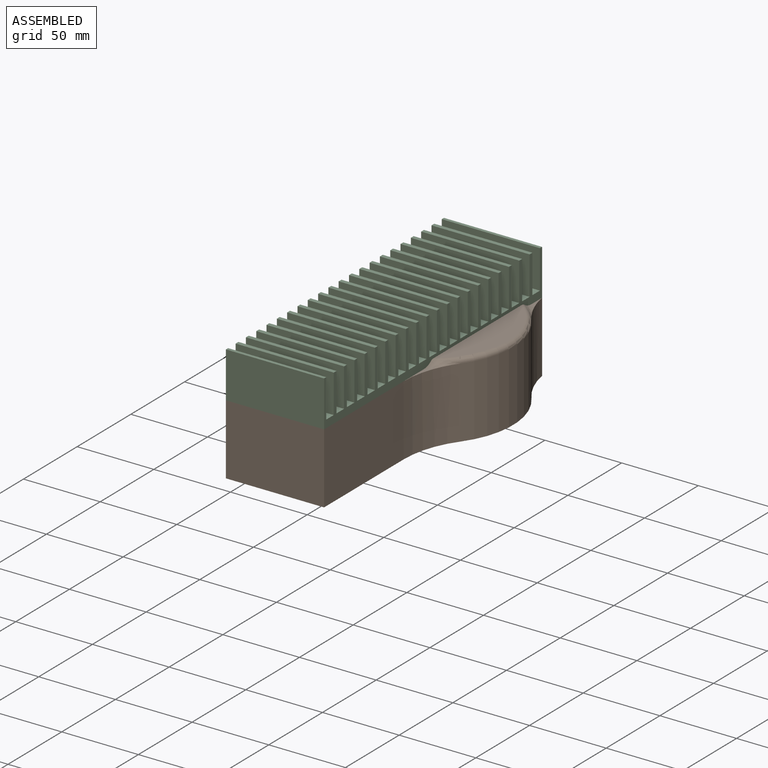
[diagram: assembled view]
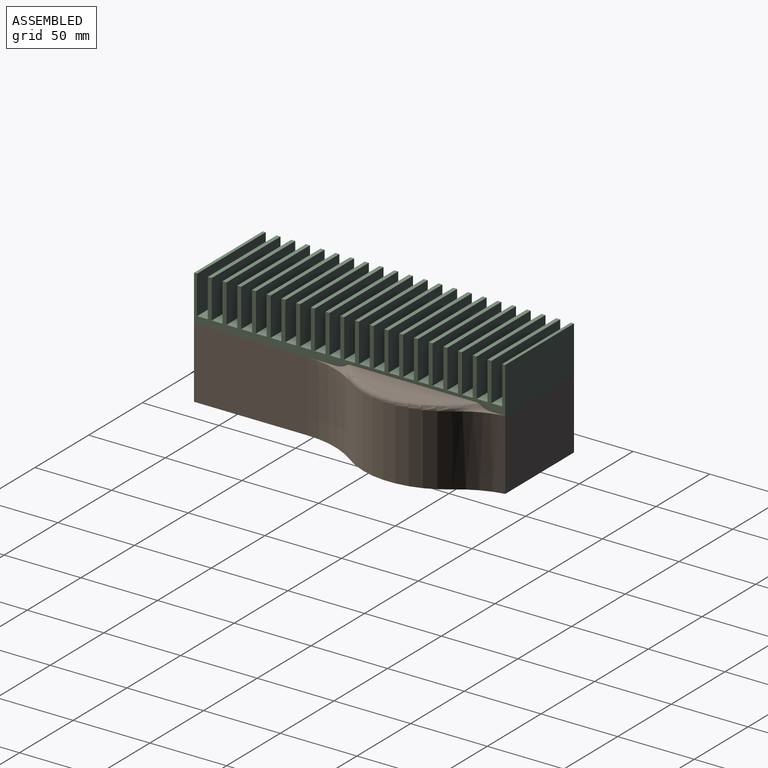
[diagram: assembled view, second angle]
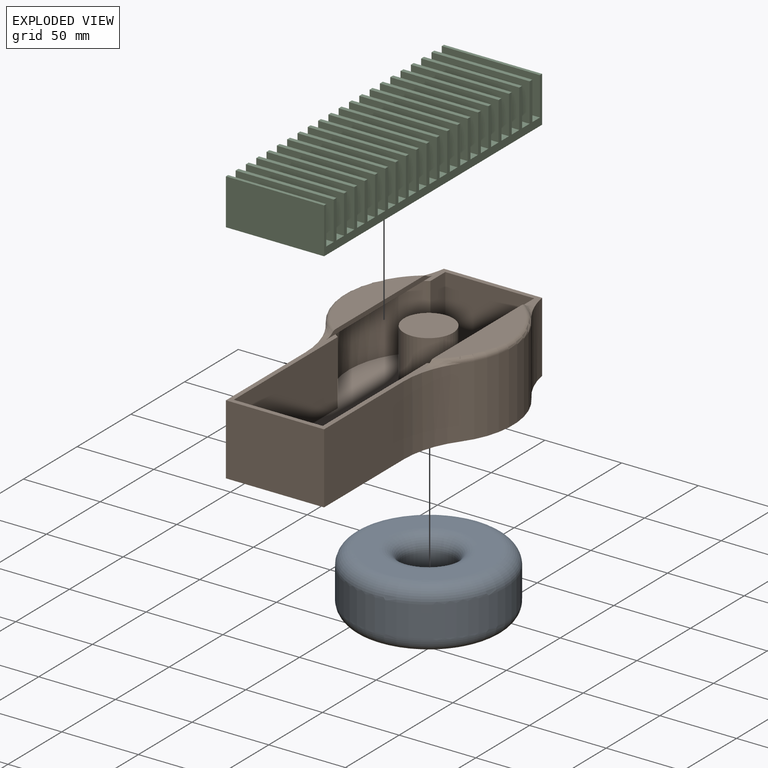
[diagram: exploded view]
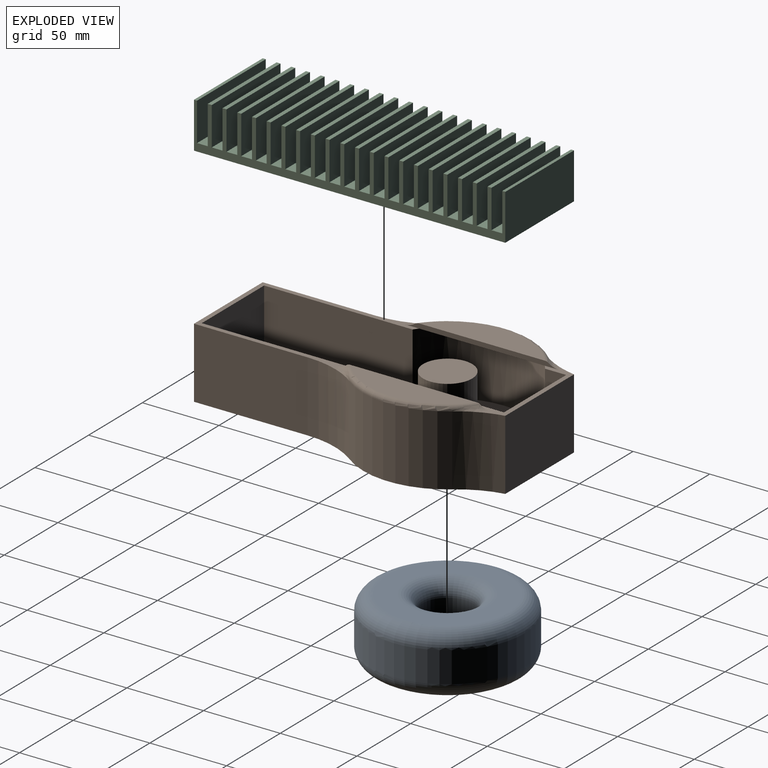
[diagram: exploded view, second angle]
ASSEMBLY  parts=3 mates=2
PART A: 8 faces, bbox 108.2x108.2x40 mm
  f0: cylinder r=16.5mm len=33mm, axis (0,0,-1), area 2073.5mm2, adj f4,f6
  f1: cylinder r=50mm len=100mm, axis (0,0,-1), area 6283.2mm2, adj f5,f7
  f2: plane 80x80mm, normal (0,0,1), area 2820.4mm2, adj f6,f7
  f3: plane 80x80mm, normal (0,0,-1), area 2820.4mm2, adj f4,f5
  f4: torus R=26.5mm, axis (0,0,1), area 1987.1mm2, adj f0,f3
  f5: torus R=40mm, axis (0,0,1), area 4576.2mm2, adj f1,f3
  f6: torus R=26.5mm, axis (0,0,1), area 1987.1mm2, adj f0,f2
  f7: torus R=40mm, axis (0,0,1), area 4576.2mm2, adj f1,f2
PART B: 40 faces, bbox 119.2x203.1x49.1 mm
  f0: plane 70.84x19.01mm, normal (0,0,1), area 309.1mm2, adj f7,f9,f10,f11,f12,f16,f20,f23
  f1: plane 102.01x72.03mm, normal (0,0,1), area 824.8mm2, adj f3,f4,f5,f12,f13,f14,f15,f16
  f2: cylinder r=55mm len=66.54mm, axis (0,0,-1), area 3287.5mm2, adj f8,f27,f29,f31
  f3: plane 74x46mm, normal (-1,0,0), area 3404mm2, adj f1,f4,f8,f29
  f4: plane 64x46mm, normal (0,-1,0), area 2944mm2, adj f1,f3,f5,f8
  f5: plane 74x46mm, normal (1,0,0), area 3404mm2, adj f1,f4,f8,f28
  f6: cylinder r=55mm len=66.54mm, axis (0,0,-1), area 3287.5mm2, adj f8,f26,f28,f30
  f7: plane 64x46mm, normal (0,1,0), area 2944mm2, adj f0,f8,f26,f27
  f8: plane 203x110mm, normal (0,0,-1), area 16091.8mm2, adj f2,f3,f4,f5,f6,f7,f26,f27
  f9: plane 42x13.84mm, normal (-1,0,0), area 581.2mm2, adj f0,f10,f16,f17
  f10: plane 58x42mm, normal (0,-1,0), area 2436mm2, adj f0,f9,f11,f17
  f11: plane 42x13.84mm, normal (1,0,0), area 581.2mm2, adj f0,f10,f12,f17
  f12: cylinder r=52mm len=86.33mm, axis (0,0,1), area 4277.1mm2, adj f0,f1,f11,f13,f17,f22
  f13: plane 96.84x42mm, normal (1,0,0), area 4067.2mm2, adj f1,f12,f14,f17
  f14: plane 58x42mm, normal (0,1,0), area 2436mm2, adj f1,f13,f15,f17
  f15: plane 96.84x42mm, normal (-1,0,0), area 4067.2mm2, adj f1,f14,f16,f17
  f16: cylinder r=52mm len=86.33mm, axis (0,0,1), area 4277.1mm2, adj f0,f1,f9,f15,f17,f25
  f17: plane 197x104mm, normal (0,0,1), area 13413.8mm2, adj f9,f10,f11,f12,f13,f14,f15,f16
  f18: cylinder r=16mm len=40mm, axis (0,0,-1), area 4021.2mm2, adj f17,f19
  f19: plane 32x32mm, normal (0,0,1), area 804.2mm2, adj f18
  f20: plane 100.57x3.13mm, normal (1,0,0), area 269.3mm2, adj f0,f1,f21,f22,f31,f33,f34
  f21: plane 81.98x20mm, normal (0,0,1), area 1143.4mm2, adj f20,f31
  f22: plane 81.98x20mm, normal (0,0,-1), area 1143.4mm2, adj f12,f20
  f23: plane 100.57x3.13mm, normal (-1,0,0), area 269.3mm2, adj f0,f1,f24,f25,f30,f36,f39
  f24: plane 81.98x20mm, normal (0,0,1), area 1143.4mm2, adj f23,f30
  f25: plane 81.98x20mm, normal (0,0,-1), area 1143.4mm2, adj f16,f23
  f26: cylinder r=60mm len=46mm, axis (0,0,1), area 1341.8mm2, adj f0,f6,f7,f8,f37
  f27: cylinder r=60mm len=46mm, axis (0,0,1), area 1341.8mm2, adj f0,f2,f7,f8,f32
  f28: cylinder r=60mm len=46mm, axis (0,0,-1), area 1776.1mm2, adj f1,f5,f6,f8,f38
  f29: cylinder r=60mm len=46mm, axis (0,0,-1), area 1776.1mm2, adj f1,f2,f3,f8,f35
  f30: torus R=52mm, axis (0,0,1), area 419.3mm2, adj f6,f23,f24,f36,f37,f38,f39
  f31: torus R=52mm, axis (0,0,1), area 419.3mm2, adj f2,f20,f21,f32,f33,f34,f35
  f32: bspline ~17.42x14.3mm, area 40.6mm2, adj f27,f31,f33
  f33: torus R=59.55mm, axis (0,0,1), area 12.8mm2, adj f0,f20,f31,f32
  f34: torus R=59.55mm, axis (0,0,1), area 17mm2, adj f1,f20,f31,f35
  f35: bspline ~16.85x13.53mm, area 40.6mm2, adj f29,f31,f34
  f36: torus R=59.55mm, axis (0,0,1), area 12.8mm2, adj f0,f23,f30,f37
  f37: bspline ~17.42x14.3mm, area 40.6mm2, adj f26,f30,f36
  f38: bspline ~14.97x11.8mm, area 40.6mm2, adj f28,f30,f39
  f39: torus R=59.55mm, axis (0,0,1), area 17mm2, adj f1,f23,f30,f38
PART C: 90 faces, bbox 64x203x30 mm
  f0: plane 203x30mm, normal (1,0,0), area 2415mm2, adj f2,f3,f4,f5,f6,f7,f8,f9
  f1: plane 203x30mm, normal (-1,0,0), area 2415mm2, adj f2,f3,f4,f5,f6,f7,f8,f9
  f2: plane 64x2.6mm, normal (0,0,1), area 166.4mm2, adj f0,f1,f86,f88
  f3: plane 64x2.6mm, normal (0,0,1), area 166.4mm2, adj f0,f1,f83,f85
  f4: plane 64x2.6mm, normal (0,0,1), area 166.4mm2, adj f0,f1,f80,f82
  f5: plane 64x2.6mm, normal (0,0,1), area 166.4mm2, adj f0,f1,f77,f79
  f6: plane 64x2.6mm, normal (0,0,1), area 166.4mm2, adj f0,f1,f74,f76
  f7: plane 64x2.6mm, normal (0,0,1), area 166.4mm2, adj f0,f1,f71,f73
  f8: plane 64x2.6mm, normal (0,0,1), area 166.4mm2, adj f0,f1,f68,f70
  f9: plane 64x2.6mm, normal (0,0,1), area 166.4mm2, adj f0,f1,f65,f67
  f10: plane 64x2.6mm, normal (0,0,1), area 166.4mm2, adj f0,f1,f62,f64
  f11: plane 64x2.6mm, normal (0,0,1), area 166.4mm2, adj f0,f1,f29,f61
  f12: plane 64x2mm, normal (0,0,1), area 128mm2, adj f0,f1,f24,f58
  f13: plane 64x2.6mm, normal (0,0,1), area 166.4mm2, adj f0,f1,f55,f59
  f14: plane 64x2.6mm, normal (0,0,1), area 166.4mm2, adj f0,f1,f52,f56
  f15: plane 64x2.6mm, normal (0,0,1), area 166.4mm2, adj f0,f1,f49,f53
  f16: plane 64x2.6mm, normal (0,0,1), area 166.4mm2, adj f0,f1,f46,f50
  f17: plane 64x2.6mm, normal (0,0,1), area 166.4mm2, adj f0,f1,f43,f47
  f18: plane 64x2.6mm, normal (0,0,1), area 166.4mm2, adj f0,f1,f40,f44
  f19: plane 64x2.6mm, normal (0,0,1), area 166.4mm2, adj f0,f1,f37,f41
  f20: plane 64x2.6mm, normal (0,0,1), area 166.4mm2, adj f0,f1,f34,f38
  f21: plane 64x2.6mm, normal (0,0,1), area 166.4mm2, adj f0,f1,f31,f35
  f22: plane 64x2.6mm, normal (0,0,1), area 166.4mm2, adj f0,f1,f28,f32
  f23: plane 64x30mm, normal (0,-1,0), area 1920mm2, adj f0,f1,f25,f26
  f24: plane 64x30mm, normal (0,1,0), area 1920mm2, adj f0,f1,f12,f26
  f25: plane 64x2mm, normal (0,0,1), area 128mm2, adj f0,f1,f23,f89
  f26: plane 203x64mm, normal (0,0,-1), area 12992mm2, adj f0,f1,f23,f24
  f27: plane 64x7mm, normal (0,0,1), area 448mm2, adj f0,f1,f28,f29
  f28: plane 64x25mm, normal (0,-1,0), area 1600mm2, adj f0,f1,f22,f27
  f29: plane 64x25mm, normal (0,1,0), area 1600mm2, adj f0,f1,f11,f27
  f30: plane 64x7mm, normal (0,0,1), area 448mm2, adj f0,f1,f31,f32
  f31: plane 64x25mm, normal (0,-1,0), area 1600mm2, adj f0,f1,f21,f30
  f32: plane 64x25mm, normal (0,1,0), area 1600mm2, adj f0,f1,f22,f30
  f33: plane 64x7mm, normal (0,0,1), area 448mm2, adj f0,f1,f34,f35
  f34: plane 64x25mm, normal (0,-1,0), area 1600mm2, adj f0,f1,f20,f33
  f35: plane 64x25mm, normal (0,1,0), area 1600mm2, adj f0,f1,f21,f33
  f36: plane 64x7mm, normal (0,0,1), area 448mm2, adj f0,f1,f37,f38
  f37: plane 64x25mm, normal (0,-1,0), area 1600mm2, adj f0,f1,f19,f36
  f38: plane 64x25mm, normal (0,1,0), area 1600mm2, adj f0,f1,f20,f36
  f39: plane 64x7mm, normal (0,0,1), area 448mm2, adj f0,f1,f40,f41
  f40: plane 64x25mm, normal (0,-1,0), area 1600mm2, adj f0,f1,f18,f39
  f41: plane 64x25mm, normal (0,1,0), area 1600mm2, adj f0,f1,f19,f39
  f42: plane 64x7mm, normal (0,0,1), area 448mm2, adj f0,f1,f43,f44
  f43: plane 64x25mm, normal (0,-1,0), area 1600mm2, adj f0,f1,f17,f42
  f44: plane 64x25mm, normal (0,1,0), area 1600mm2, adj f0,f1,f18,f42
  f45: plane 64x7mm, normal (0,0,1), area 448mm2, adj f0,f1,f46,f47
  f46: plane 64x25mm, normal (0,-1,0), area 1600mm2, adj f0,f1,f16,f45
  f47: plane 64x25mm, normal (0,1,0), area 1600mm2, adj f0,f1,f17,f45
  f48: plane 64x7mm, normal (0,0,1), area 448mm2, adj f0,f1,f49,f50
  f49: plane 64x25mm, normal (0,-1,0), area 1600mm2, adj f0,f1,f15,f48
  f50: plane 64x25mm, normal (0,1,0), area 1600mm2, adj f0,f1,f16,f48
  f51: plane 64x7mm, normal (0,0,1), area 448mm2, adj f0,f1,f52,f53
  f52: plane 64x25mm, normal (0,-1,0), area 1600mm2, adj f0,f1,f14,f51
  f53: plane 64x25mm, normal (0,1,0), area 1600mm2, adj f0,f1,f15,f51
  f54: plane 64x7mm, normal (0,0,1), area 448mm2, adj f0,f1,f55,f56
  f55: plane 64x25mm, normal (0,-1,0), area 1600mm2, adj f0,f1,f13,f54
  f56: plane 64x25mm, normal (0,1,0), area 1600mm2, adj f0,f1,f14,f54
  f57: plane 64x7mm, normal (0,0,1), area 448mm2, adj f0,f1,f58,f59
  f58: plane 64x25mm, normal (0,-1,0), area 1600mm2, adj f0,f1,f12,f57
  f59: plane 64x25mm, normal (0,1,0), area 1600mm2, adj f0,f1,f13,f57
  f60: plane 64x7mm, normal (0,0,1), area 448mm2, adj f0,f1,f61,f62
  f61: plane 64x25mm, normal (0,-1,0), area 1600mm2, adj f0,f1,f11,f60
  f62: plane 64x25mm, normal (0,1,0), area 1600mm2, adj f0,f1,f10,f60
  f63: plane 64x7mm, normal (0,0,1), area 448mm2, adj f0,f1,f64,f65
  f64: plane 64x25mm, normal (0,-1,0), area 1600mm2, adj f0,f1,f10,f63
  f65: plane 64x25mm, normal (0,1,0), area 1600mm2, adj f0,f1,f9,f63
  f66: plane 64x7mm, normal (0,0,1), area 448mm2, adj f0,f1,f67,f68
  f67: plane 64x25mm, normal (0,-1,0), area 1600mm2, adj f0,f1,f9,f66
  f68: plane 64x25mm, normal (0,1,0), area 1600mm2, adj f0,f1,f8,f66
  f69: plane 64x7mm, normal (0,0,1), area 448mm2, adj f0,f1,f70,f71
  f70: plane 64x25mm, normal (0,-1,0), area 1600mm2, adj f0,f1,f8,f69
  f71: plane 64x25mm, normal (0,1,0), area 1600mm2, adj f0,f1,f7,f69
  f72: plane 64x7mm, normal (0,0,1), area 448mm2, adj f0,f1,f73,f74
  f73: plane 64x25mm, normal (0,-1,0), area 1600mm2, adj f0,f1,f7,f72
  f74: plane 64x25mm, normal (0,1,0), area 1600mm2, adj f0,f1,f6,f72
  f75: plane 64x7mm, normal (0,0,1), area 448mm2, adj f0,f1,f76,f77
  f76: plane 64x25mm, normal (0,-1,0), area 1600mm2, adj f0,f1,f6,f75
  f77: plane 64x25mm, normal (0,1,0), area 1600mm2, adj f0,f1,f5,f75
  f78: plane 64x7mm, normal (0,0,1), area 448mm2, adj f0,f1,f79,f80
  f79: plane 64x25mm, normal (0,-1,0), area 1600mm2, adj f0,f1,f5,f78
  f80: plane 64x25mm, normal (0,1,0), area 1600mm2, adj f0,f1,f4,f78
  f81: plane 64x7mm, normal (0,0,1), area 448mm2, adj f0,f1,f82,f83
  f82: plane 64x25mm, normal (0,-1,0), area 1600mm2, adj f0,f1,f4,f81
  f83: plane 64x25mm, normal (0,1,0), area 1600mm2, adj f0,f1,f3,f81
  f84: plane 64x7mm, normal (0,0,1), area 448mm2, adj f0,f1,f85,f86
  f85: plane 64x25mm, normal (0,-1,0), area 1600mm2, adj f0,f1,f3,f84
  f86: plane 64x25mm, normal (0,1,0), area 1600mm2, adj f0,f1,f2,f84
  f87: plane 64x7mm, normal (0,0,1), area 448mm2, adj f0,f1,f88,f89
  f88: plane 64x25mm, normal (0,-1,0), area 1600mm2, adj f0,f1,f2,f87
  f89: plane 64x25mm, normal (0,1,0), area 1600mm2, adj f0,f1,f25,f87
PLACE A t=(81.05,125.91,8.11)mm
PLACE B t=(81.05,125.91,4.11)mm
PLACE C t=(81.05,84.41,50.11)mm
MATE fastened B.f18 <-> A.f1  axis (0,0,-1) through (81.05,125.91,8.11)mm
MATE fastened C.f26 <-> B.f0  axis (0,0,-1) through (81.05,185.91,50.11)mm
